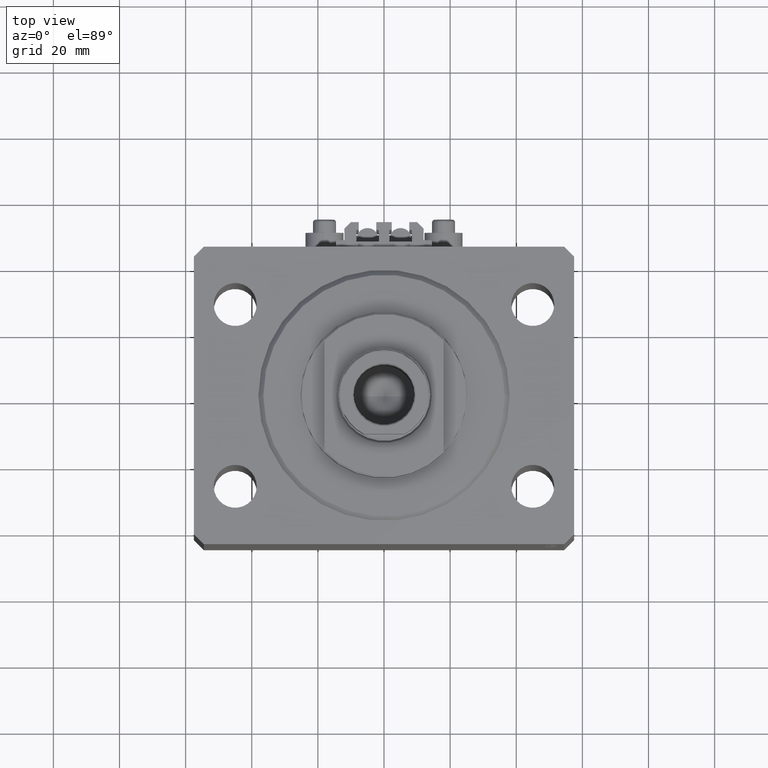
[diagram: clean part render]
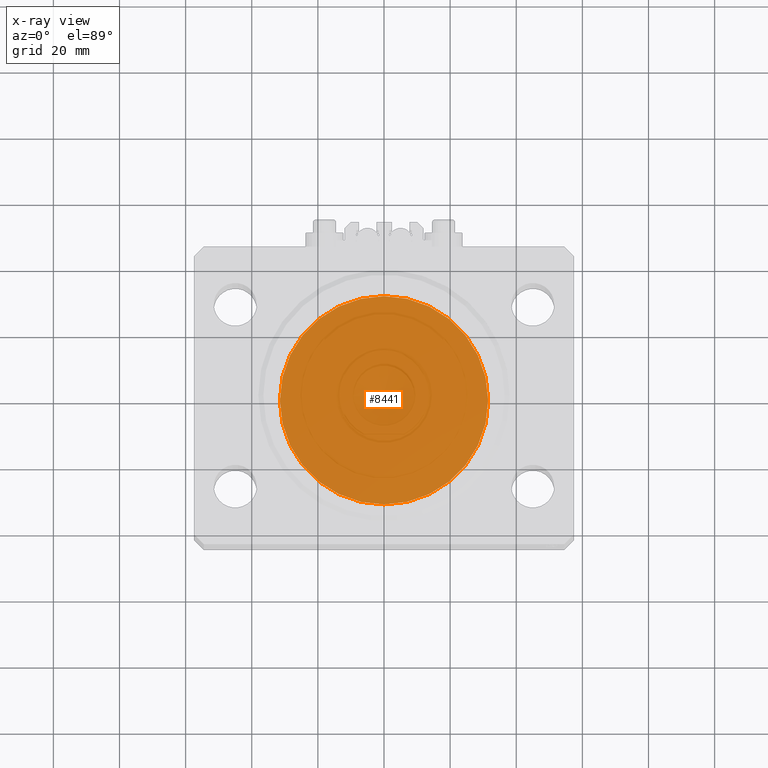
[diagram: x-ray — body ghosted, one internal face saturated and labeled with its STEP entity id]
A machine part, top view, then the same camera in x-ray: the body is ghosted and one INTERNAL B-rep face — a face not visible from any outside direction — is saturated and labeled: STEP entity #8441.
In plain terms, the highlighted planar face has unit normal (0, 0, 1).
Its self-contained STEP definition (entity closure, byte-faithful):
#2739 = EDGE_LOOP ( 'NONE', ( #36873, #42156 ) ) ;
#3448 = CARTESIAN_POINT ( 'NONE',  ( -31.50000000000000000, 0.000000000000000000, 0.000000000000000000 ) ) ;
#6962 = CARTESIAN_POINT ( 'NONE',  ( 0.000000000000000000, 0.000000000000000000, 0.000000000000000000 ) ) ;
#7096 = FACE_OUTER_BOUND ( 'NONE', #2739, .T. ) ;
#8441 = ADVANCED_FACE ( 'NONE', ( #7096 ), #28811, .F. ) ;
#11410 = DIRECTION ( 'NONE',  ( 0.000000000000000000, 0.000000000000000000, 1.000000000000000000 ) ) ;
#14817 = AXIS2_PLACEMENT_3D ( 'NONE', #36598, #18066, #43417 ) ;
#15077 = CARTESIAN_POINT ( 'NONE',  ( 0.000000000000000000, 0.000000000000000000, 0.000000000000000000 ) ) ;
#16318 = CIRCLE ( 'NONE', #35809, 31.50000000000000000 ) ;
#18066 = DIRECTION ( 'NONE',  ( 0.000000000000000000, 0.000000000000000000, 1.000000000000000000 ) ) ;
#21833 = CIRCLE ( 'NONE', #37391, 31.50000000000000000 ) ;
#22963 = VERTEX_POINT ( 'NONE', #3448 ) ;
#28811 = PLANE ( 'NONE',  #14817 ) ;
#29642 = DIRECTION ( 'NONE',  ( 1.000000000000000000, 0.000000000000000000, 0.000000000000000000 ) ) ;
#31042 = EDGE_CURVE ( 'NONE', #33752, #22963, #16318, .T. ) ;
#32218 = EDGE_CURVE ( 'NONE', #22963, #33752, #21833, .T. ) ;
#33752 = VERTEX_POINT ( 'NONE', #42897 ) ;
#35809 = AXIS2_PLACEMENT_3D ( 'NONE', #6962, #44971, #29642 ) ;
#36598 = CARTESIAN_POINT ( 'NONE',  ( 0.000000000000000000, 0.000000000000000000, 0.000000000000000000 ) ) ;
#36873 = ORIENTED_EDGE ( 'NONE', *, *, #32218, .F. ) ;
#37391 = AXIS2_PLACEMENT_3D ( 'NONE', #15077, #11410, #44321 ) ;
#42156 = ORIENTED_EDGE ( 'NONE', *, *, #31042, .F. ) ;
#42897 = CARTESIAN_POINT ( 'NONE',  ( 31.50000000000000000, 3.857637417314162689E-15, 0.000000000000000000 ) ) ;
#43417 = DIRECTION ( 'NONE',  ( 1.000000000000000000, 0.000000000000000000, -0.000000000000000000 ) ) ;
#44321 = DIRECTION ( 'NONE',  ( 1.000000000000000000, 0.000000000000000000, 0.000000000000000000 ) ) ;
#44971 = DIRECTION ( 'NONE',  ( 0.000000000000000000, 0.000000000000000000, 1.000000000000000000 ) ) ;